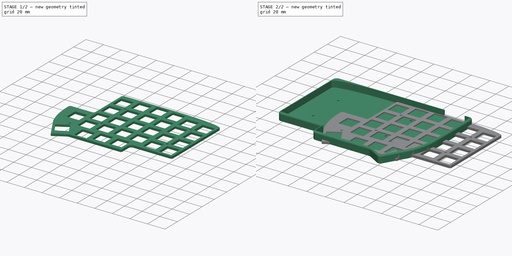
[diagram: build sequence overview — one tinted view per stage of 2, left to right]
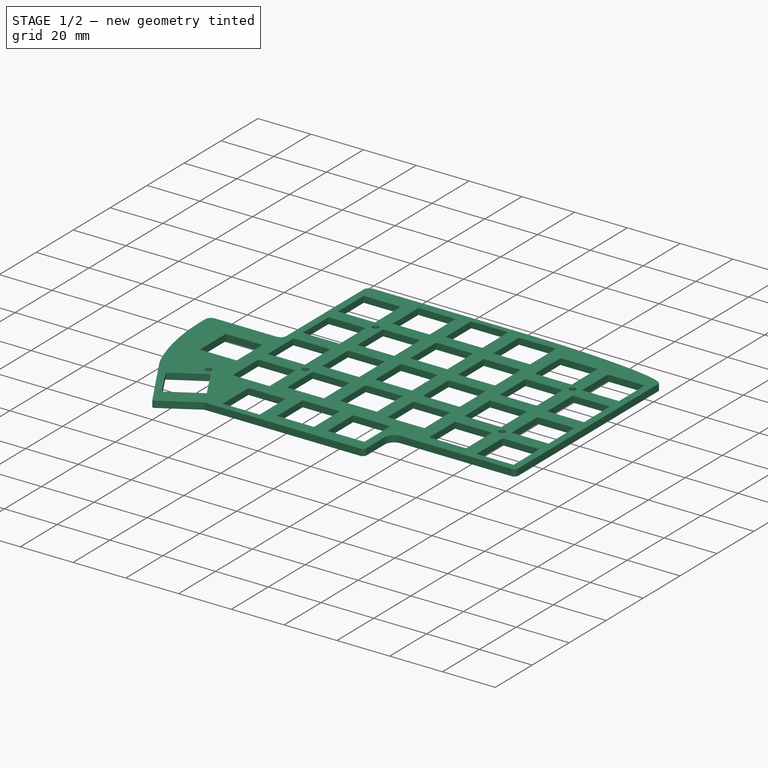
[diagram: stage 1 of 2 — iso view after this stage's code; geometry added in this stage tinted green]
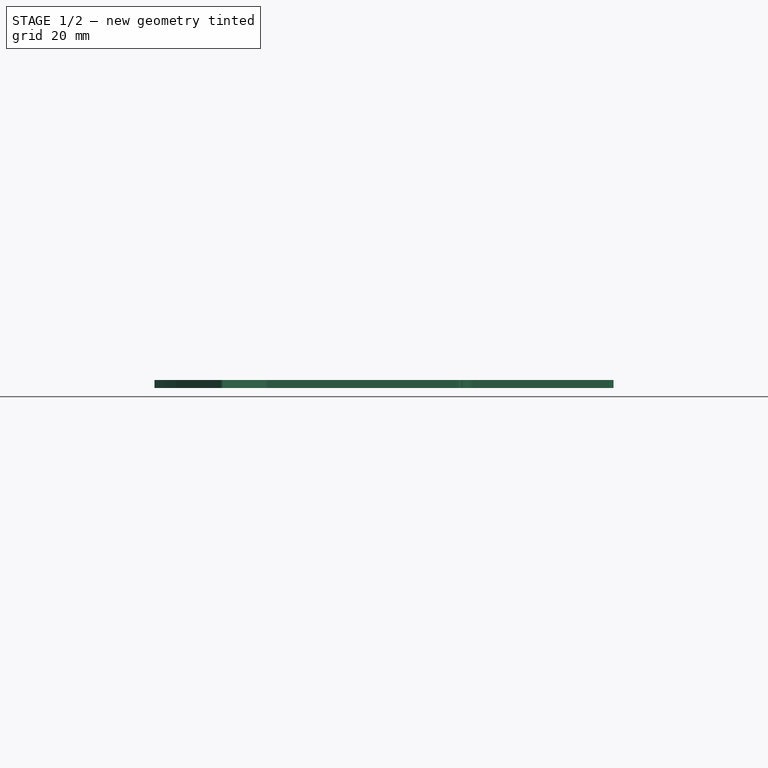
[diagram: stage 1 of 2 — front view after this stage's code; geometry added in this stage tinted green]
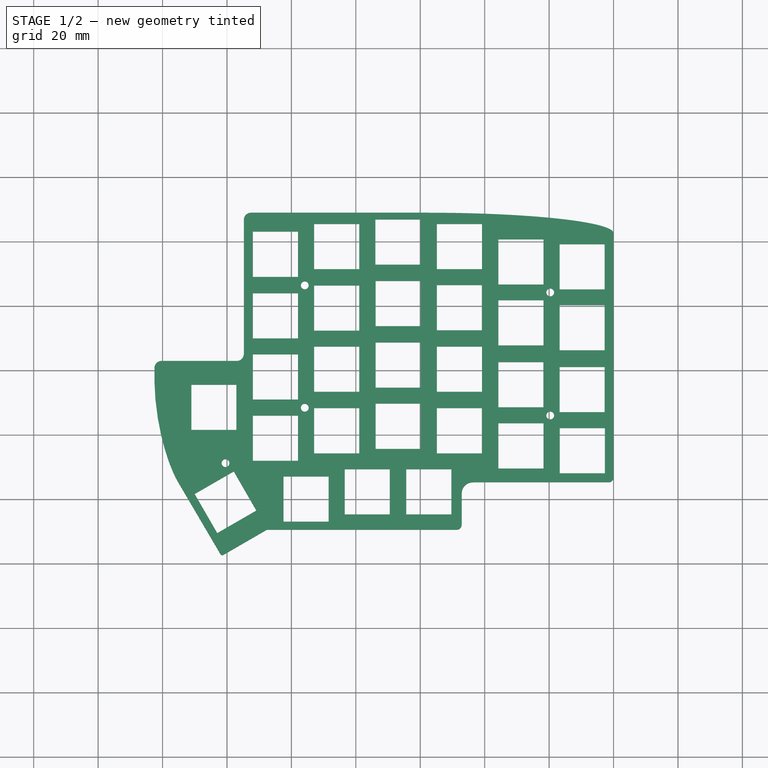
[diagram: stage 1 of 2 — top view after this stage's code; geometry added in this stage tinted green]
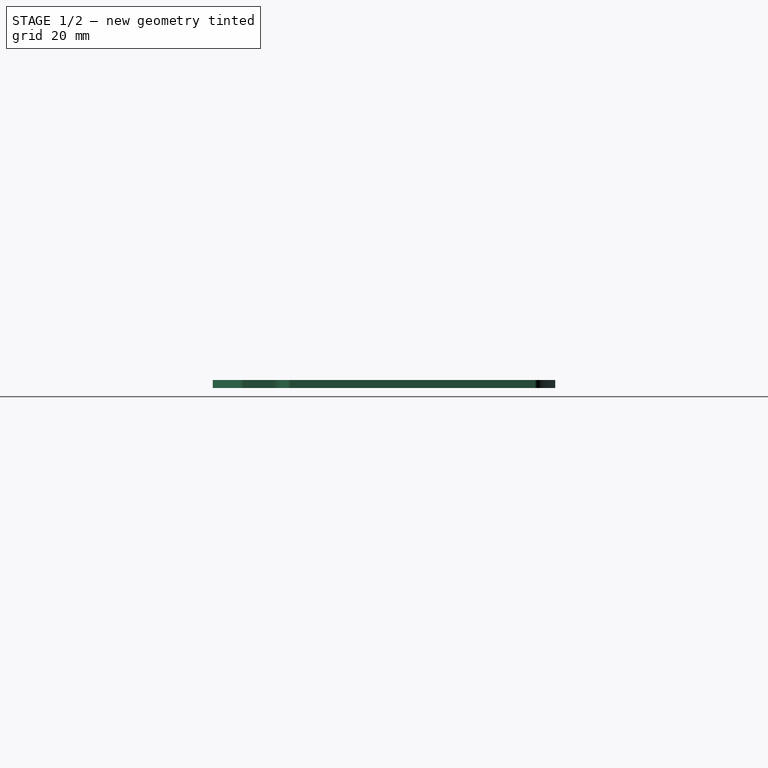
[diagram: stage 1 of 2 — right view after this stage's code; geometry added in this stage tinted green]
FCSTD DOCUMENT  (FreeCAD 0.21R33771 (Git))
Label: keyboard
License: All rights reserved
LicenseURL: http://en.wikipedia.org/wiki/All_rights_reserved
objects: Sketcher::SketchObject×3, Part::Feature×2, PartDesign::FeatureBase×2, PartDesign::Body×2, PartDesign::AdditivePipe×1, PartDesign::Pad×1, Spreadsheet::Sheet×1
note: 13 computed .brp shape members not serialized (recipe doc carries the construction recipe); baked Part::Feature solids carry a one-line shape summary decoded from their .brp

FEATURE [PartDesign::Body] Body  label="bottom"
  BaseFeature = -> Part__Feature
  Group = -> [BaseFeature,Sketch,Sketch001,AdditivePipe]
  Origin = -> Origin
  Tip = -> AdditivePipe
FEATURE [PartDesign::FeatureBase] BaseFeature001
  BaseFeature = -> Part__Feature001
FEATURE [Sketcher::SketchObject] Sketch002
  ExternalGeometry = -> [BaseFeature001]
  FullyConstrained = true
  MapMode = 5
  Placement = pos=(0,0,2.5) rot=(0,0,1;0rad)
  Support = -> [BaseFeature001]
  expr: Constraints[1] = <<Input>>.vB
  sketch-geometry (7):
    g0: LineSegment StartX=63.0283 StartY=62.978 StartZ=0 EndX=39.683 EndY=62.978 EndZ=0
    g1: ArcOfCircle CenterX=63.0283 CenterY=65.178 CenterZ=0 NormalX=0 NormalY=0 NormalZ=1 AngleXU=0 Radius=2.2 StartAngle=4.71239 EndAngle=6.28322
    g2: ArcOfCircle CenterX=39.683 CenterY=60.778 CenterZ=0 NormalX=0 NormalY=0 NormalZ=1 AngleXU=0 Radius=2.2 StartAngle=1.5708 EndAngle=3.14159
    g3: LineSegment StartX=37.483 StartY=56.5299 StartZ=0 EndX=37.483 EndY=60.778 EndZ=0
    g4: LineSegment StartX=66.2283 StartY=56.5299 StartZ=0 EndX=37.483 EndY=56.5299 EndZ=0
    g5: LineSegment StartX=65.2283 StartY=65.1781 StartZ=0 EndX=66.2283 EndY=65.1781 EndZ=0
    g6: LineSegment StartX=66.2283 StartY=65.1781 StartZ=0 EndX=66.2283 EndY=56.5299 EndZ=0
  constraints (18):
    c: Horizontal(g0)
    c: DistanceY(g0,g-5) = 2
    c: Tangent(g1,g0) = 1.5708
    c: Tangent(g1,g-3) = 1.5708
    c: Tangent(g2,g0) = -1.5708
    c: Coincident(g3,g-6)
    c: Vertical(g3)
    c: Tangent(g3,g2) = 1.5708
    c: Radius(g1) = 2.2
    c: Radius(g2) = 2.2
    c: Coincident(g4,g3)
    c: Horizontal(g4)
    c: Coincident(g5,g1)
    c: Horizontal(g5)
    c: Coincident(g6,g5)
    c: Vertical(g6)
    c: Coincident(g4,g6)
    c: DistanceX(g5,g5) = 1
FEATURE [PartDesign::Pad] Pad
  BaseFeature = -> BaseFeature001
  Direction = (0,0,1)
  Length = 2.5
  Length2 = 10
  Profile = -> Sketch002
  ReferenceAxis = -> Sketch002 [N_Axis]
  Refine = true
  Reversed = true
  Type = 0
FEATURE [PartDesign::Body] Body001  label="top"
  BaseFeature = -> Part__Feature001
  Group = -> [BaseFeature001,Sketch002,Pad]
  Origin = -> Origin001
  Placement = pos=(180.55,-2.05,7.9) rot=(0,1,0;3.14159rad)
  Tip = -> Pad
FEATURE [Spreadsheet::Sheet] Spreadsheet  label="Input"
  cells = A1='LETTER; B1='NAME; C1='VALUE(mm); A2='A; B2='bottom distance; C2(vA)=8; A3='B; B3='top distance; C3(vB)=2
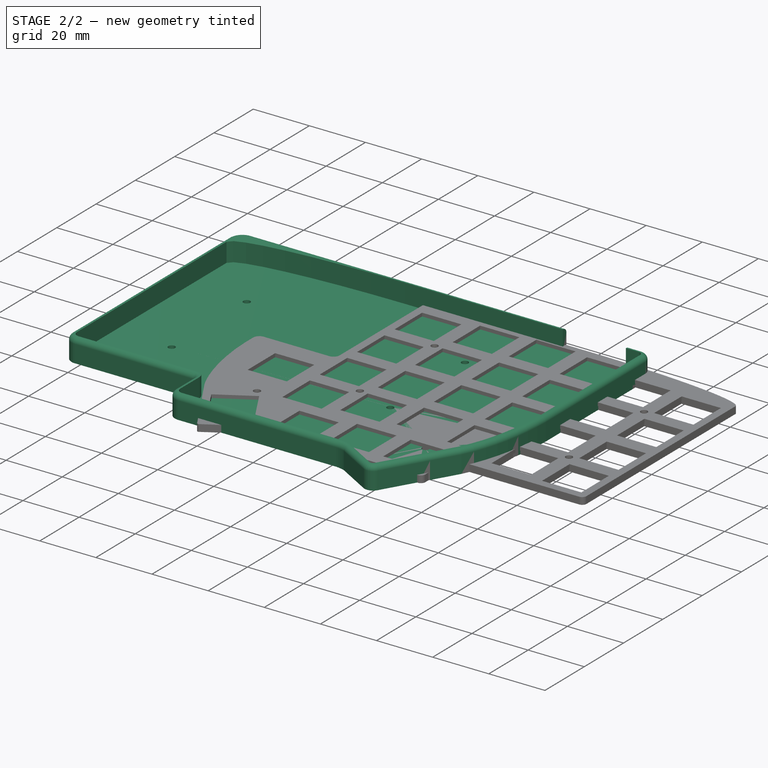
[diagram: stage 2 of 2 — iso view after this stage's code; geometry added in this stage tinted green]
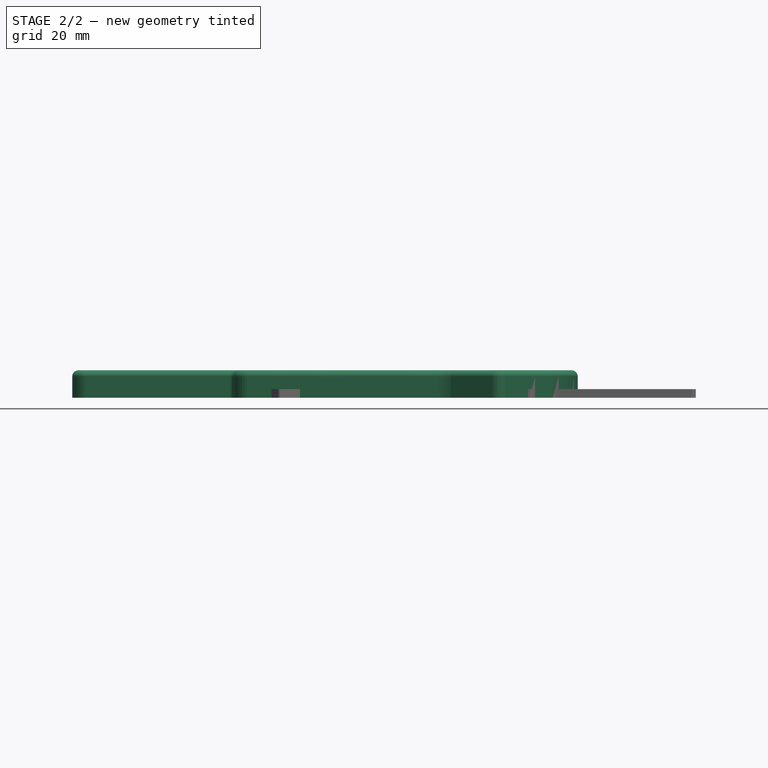
[diagram: stage 2 of 2 — front view after this stage's code; geometry added in this stage tinted green]
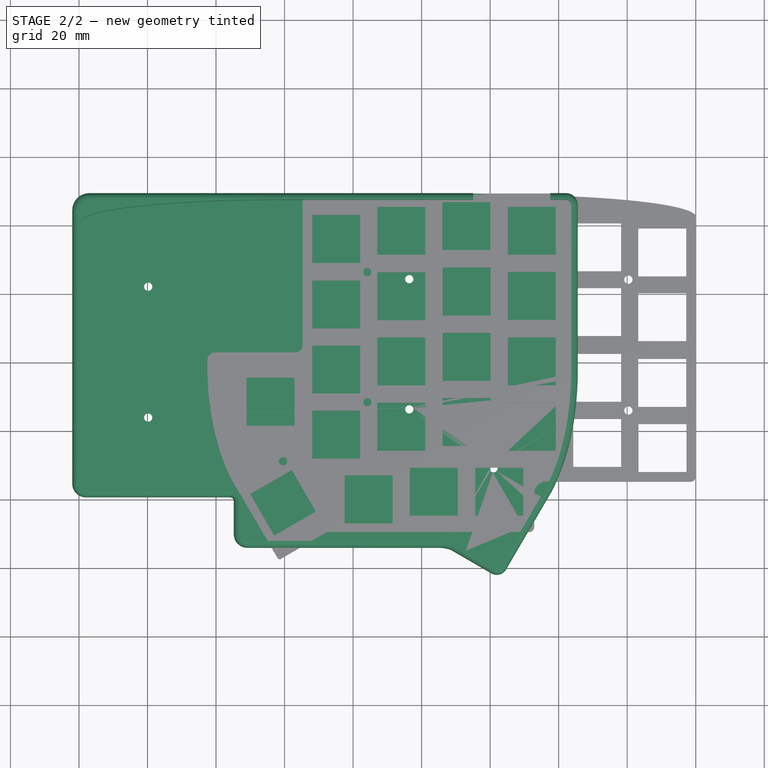
[diagram: stage 2 of 2 — top view after this stage's code; geometry added in this stage tinted green]
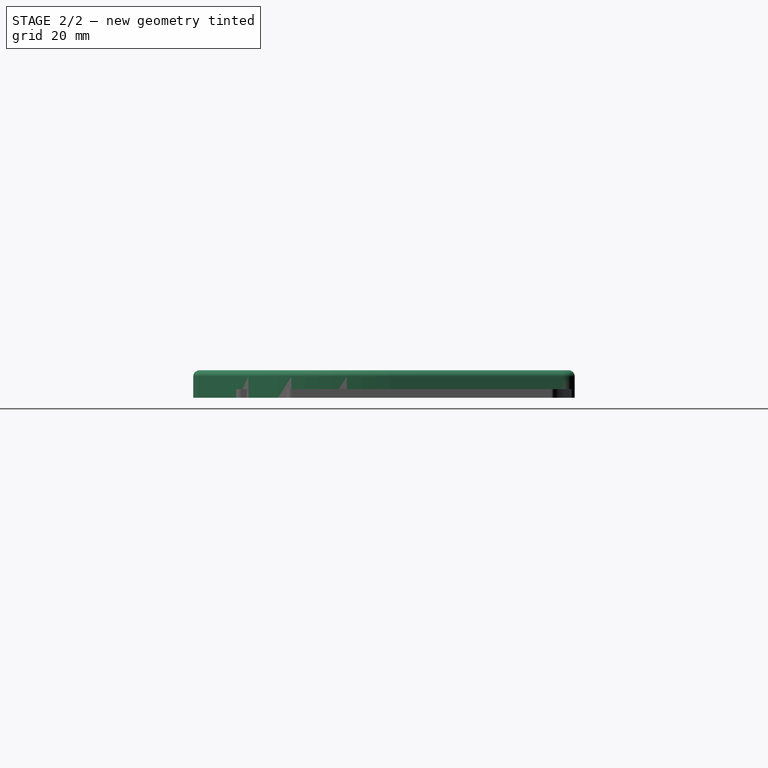
[diagram: stage 2 of 2 — right view after this stage's code; geometry added in this stage tinted green]
FEATURE [Part::Feature] Part__Feature  label="lily allium v10"
  shape: bbox 147.9 x 111.8 x 8 mm, 209 faces (baked)
FEATURE [Part::Feature] Part__Feature001  label="lily top plate v9 v9"
  shape: bbox 142.5 x 106.3 x 2.5 mm, 415 faces (baked)
FEATURE [PartDesign::FeatureBase] BaseFeature
  BaseFeature = -> Part__Feature
FEATURE [Sketcher::SketchObject] Sketch
  ExternalGeometry = -> [BaseFeature]
  FullyConstrained = true
  MapMode = 5
  Placement = pos=(0,56.9066,0) rot=(0,0.707107,0.707107;3.14159rad)
  Support = -> [BaseFeature]
  sketch-geometry (5):
    g0: LineSegment StartX=-145.562 StartY=1.2 StartZ=0 EndX=-145.562 EndY=6.2 EndZ=0
    g1: LineSegment StartX=-143.662 StartY=8 StartZ=0 EndX=-143.662 EndY=1.2 EndZ=0
    g2: LineSegment StartX=-143.662 StartY=1.2 StartZ=0 EndX=-145.562 EndY=1.2 EndZ=0
    g3: LineSegment StartX=-143.662 StartY=8 StartZ=0 EndX=-143.762 EndY=8 EndZ=0
    g4: ArcOfCircle CenterX=-143.762 CenterY=6.2 CenterZ=0 NormalX=0 NormalY=0 NormalZ=1 AngleXU=0 Radius=1.8 StartAngle=1.5708 EndAngle=3.14159
  constraints (10):
    c: Vertical(g0)
    c: Coincident(g1,g2)
    c: Coincident(g2,g0)
    c: Coincident(g3,g1)
    c: Tangent(g4,g0) = 1.5708
    c: Tangent(g3,g4) = -1.5708
    c: Coincident(g1,g-5)
    c: Coincident(g3,g-5)
    c: Coincident(g1,g-4)
    c: Coincident(g0,g-3)
FEATURE [Sketcher::SketchObject] Sketch001
  ExternalGeometry = -> [BaseFeature]
  FullyConstrained = true
  MapMode = 5
  Placement = pos=(0,0,1.2) rot=(0,0,1;0rad)
  Support = -> [BaseFeature]
  expr: Constraints[6] = <<Input>>.vA
  sketch-geometry (3):
    g0: LineSegment StartX=137.562 StartY=109.407 StartZ=0 EndX=142.142 EndY=109.407 EndZ=0
    g1: ArcOfCircle CenterX=142.142 CenterY=105.986 CenterZ=0 NormalX=0 NormalY=0 NormalZ=1 AngleXU=0 Radius=3.42036 StartAngle=3.15035e-08 EndAngle=1.5708
    g2: LineSegment StartX=145.562 StartY=105.986 StartZ=0 EndX=145.562 EndY=56.9066 EndZ=0
  constraints (7):
    c: Horizontal(g0)
    c: Tangent(g0,g1) = 1.5708
    c: Tangent(g1,g2) = 1.5708
    c: Coincident(g2,g-4)
    c: PointOnObject(g0,g-3)
    c: Coincident(g1,g-5)
    c: DistanceX(g0,g1) = 8
FEATURE [PartDesign::AdditivePipe] AdditivePipe
  AuxilleryCurvelinear = true
  AuxillerySpineTangent = false
  BaseFeature = -> BaseFeature
  Binormal = (0,0,0)
  Mode = 0
  Profile = -> Sketch
  Spine = -> Sketch001
  SpineTangent = false
  Transformation = 0
  Transition = 0
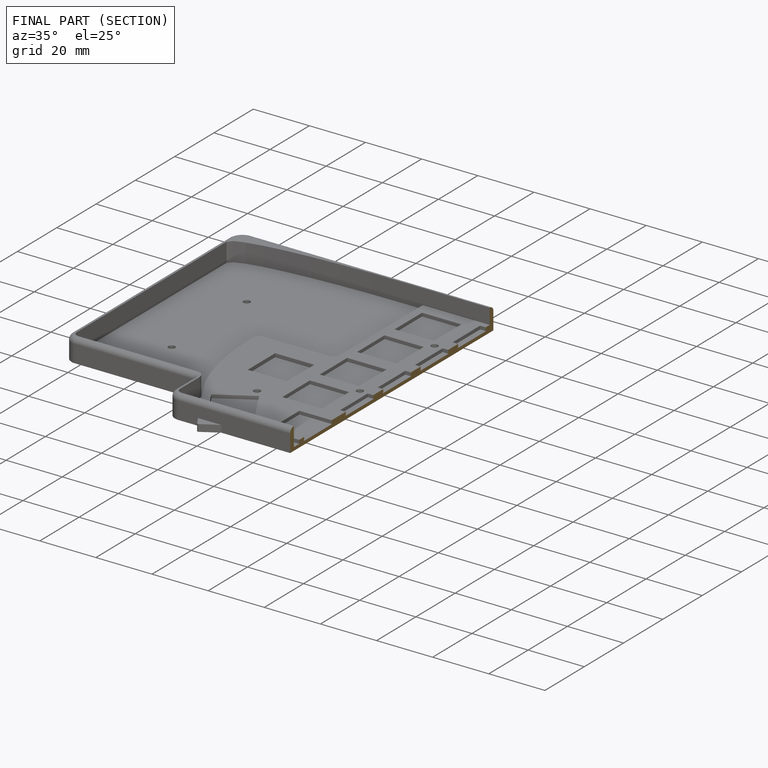
[diagram: finished part — half-section view (interior)]
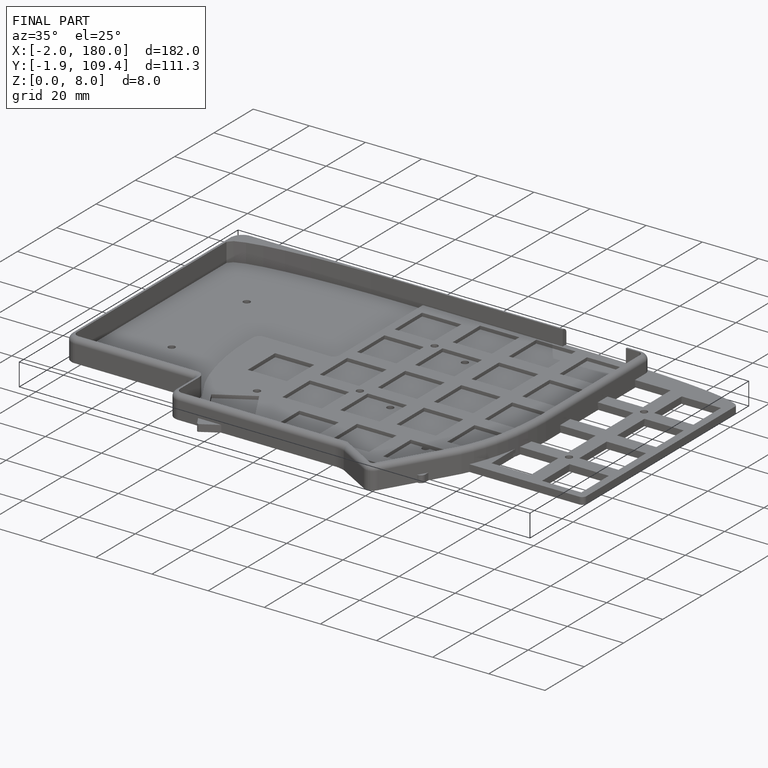
[diagram: finished part — iso view with bounding-box wireframe]
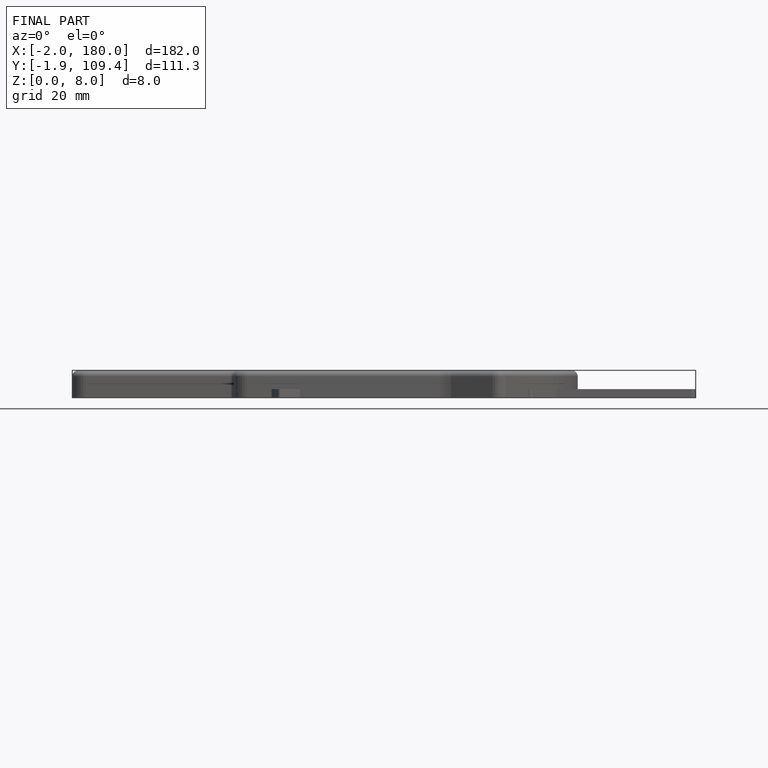
[diagram: finished part — front view with bounding-box wireframe]
